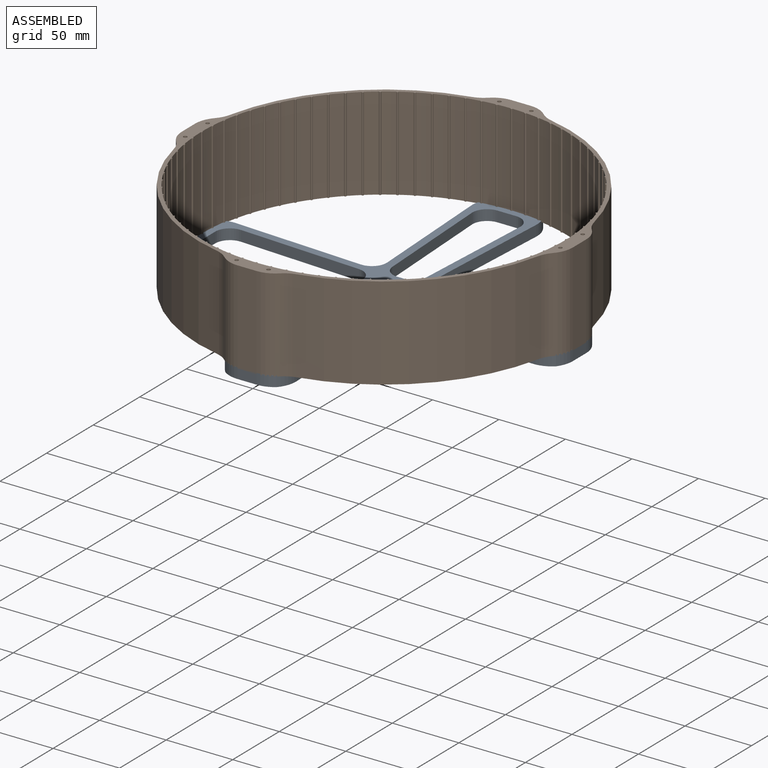
[diagram: assembled view]
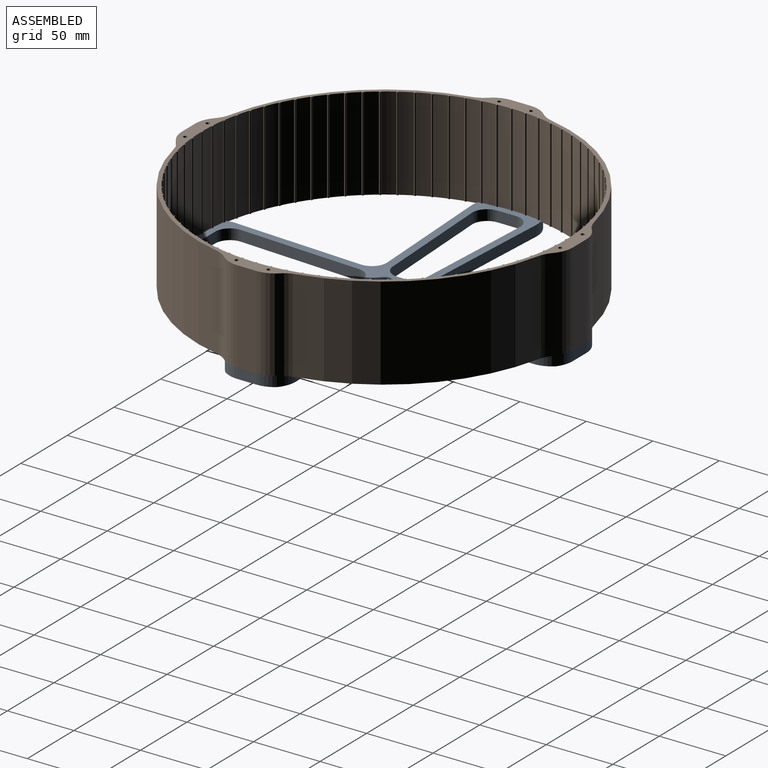
[diagram: assembled view, second angle]
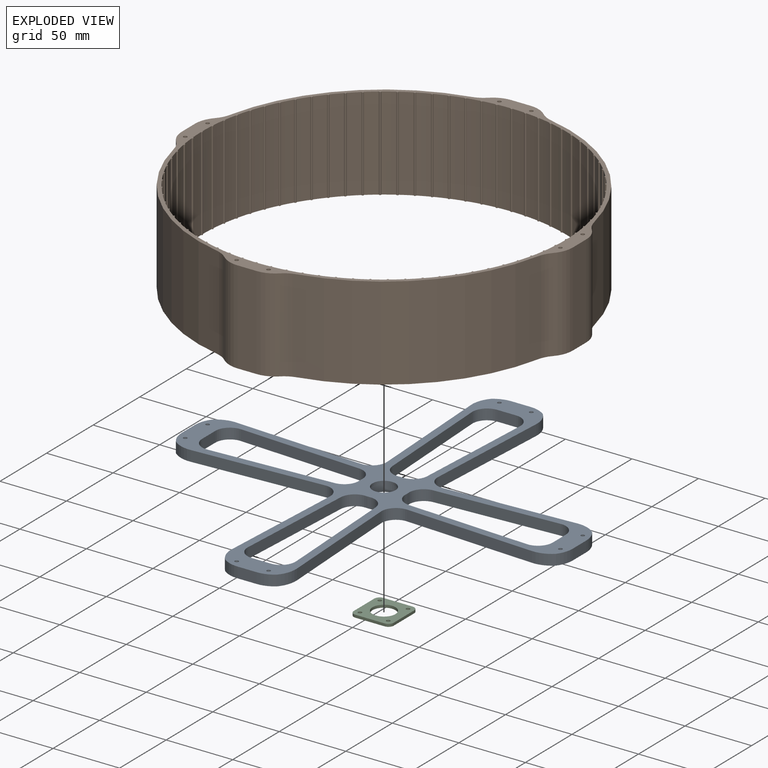
[diagram: exploded view]
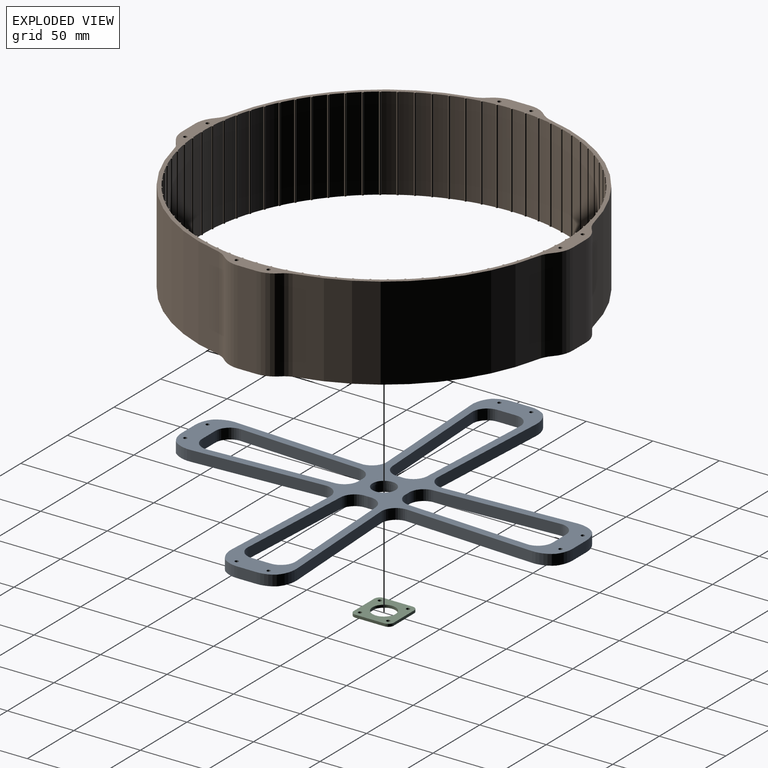
[diagram: exploded view, second angle]
ASSEMBLY  parts=3 mates=2
PART A: 93 faces, bbox 294x294x8 mm
  f0: cylinder r=9.65mm len=19.3mm, axis (0,0,1), area 363.8mm2, adj f37,f76
  f1: cylinder r=17.5mm len=8mm, axis (0,0,1), area 20.1mm2, adj f37,f38,f64,f69
  f2: plane 92.32x8mm, normal (-1,-0.05,0), area 739.7mm2, adj f37,f38,f64,f73
  f3: plane 14.11x8mm, normal (0,1,0), area 112.8mm2, adj f37,f38,f73,f74
  f4: plane 92.32x8mm, normal (0.05,1,0), area 739.7mm2, adj f37,f38,f65,f71
  f5: cylinder r=17.5mm len=8mm, axis (0,0,1), area 20.1mm2, adj f37,f38,f65,f66
  f6: plane 92.32x8mm, normal (0.05,-1,0), area 739.7mm2, adj f37,f38,f66,f70
  f7: cylinder r=17.5mm len=8mm, axis (0,0,1), area 20.1mm2, adj f37,f38,f62,f68
  f8: plane 92.32x8mm, normal (-0.05,1,0), area 739.7mm2, adj f37,f38,f60,f68
  f9: plane 14.11x8mm, normal (1,0,0), area 112.8mm2, adj f37,f38,f60,f61
  f10: cylinder r=17.5mm len=8mm, axis (0,0,1), area 20.1mm2, adj f37,f38,f63,f67
  f11: plane 92.32x8mm, normal (1,0.05,0), area 739.7mm2, adj f37,f38,f56,f63
  f12: plane 14.11x8mm, normal (0,-1,0), area 112.8mm2, adj f37,f38,f56,f57
  f13: plane 97.59x8mm, normal (-1,-0.05,0), area 781.9mm2, adj f37,f38,f40,f55
  f14: plane 97.59x8mm, normal (0.05,1,0), area 781.9mm2, adj f37,f38,f46,f55
  f15: plane 14.34x8mm, normal (-1,0,0), area 114.7mm2, adj f37,f38,f43,f45
  f16: plane 97.59x8mm, normal (0.05,-1,0), area 781.9mm2, adj f37,f38,f44,f59
  f17: plane 97.59x8mm, normal (-1,0.05,0), area 781.9mm2, adj f37,f38,f52,f59
  f18: plane 14.34x8mm, normal (0,-1,0), area 114.7mm2, adj f37,f38,f51,f53
  f19: plane 97.59x8mm, normal (1,0.05,0), area 781.9mm2, adj f37,f38,f54,f72
  f20: plane 97.59x8mm, normal (-0.05,-1,0), area 781.9mm2, adj f37,f38,f48,f72
  f21: plane 14.34x8mm, normal (1,0,0), area 114.7mm2, adj f37,f38,f47,f49
  f22: plane 97.59x8mm, normal (-0.05,1,0), area 781.9mm2, adj f37,f38,f50,f58
  f23: plane 97.59x8mm, normal (1,-0.05,0), area 781.9mm2, adj f37,f38,f42,f58
  f24: cylinder r=1.4mm len=5mm, axis (0,0,1), area 44mm2, adj f38,f86
  f25: cylinder r=1.4mm len=5mm, axis (0,0,1), area 44mm2, adj f38,f92
  f26: cylinder r=1.4mm len=5mm, axis (0,0,1), area 44mm2, adj f38,f91
  f27: cylinder r=1.4mm len=5mm, axis (0,0,1), area 44mm2, adj f38,f89
  f28: cylinder r=1.4mm len=5mm, axis (0,0,1), area 44mm2, adj f38,f90
  f29: plane 92.32x8mm, normal (1,-0.05,0), area 739.7mm2, adj f37,f38,f69,f74
  f30: plane 14.11x8mm, normal (-1,0,0), area 112.8mm2, adj f37,f38,f70,f71
  f31: plane 92.32x8mm, normal (-0.05,-1,0), area 739.7mm2, adj f37,f38,f61,f62
  f32: plane 92.32x8mm, normal (-1,0.05,0), area 739.7mm2, adj f37,f38,f57,f67
  f33: cylinder r=1.4mm len=5mm, axis (0,0,1), area 44mm2, adj f38,f88
  f34: cylinder r=1.4mm len=5mm, axis (0,0,1), area 44mm2, adj f38,f87
  f35: plane 14.34x8mm, normal (0,1,0), area 114.7mm2, adj f37,f38,f39,f41
  f36: cylinder r=1.4mm len=5mm, axis (0,0,1), area 44mm2, adj f38,f85
  f37: plane 294x294mm, normal (0,0,-1), area 8970.4mm2, adj f0,f1,f2,f3,f4,f5,f6,f7
  f38: plane 294x294mm, normal (0,0,1), area 9489.8mm2, adj f1,f2,f3,f4,f5,f6,f7,f8
  f39: cylinder r=20mm len=12.2mm, axis (0,0,1), area 105mm2, adj f35,f37,f38,f40
  f40: cylinder r=20mm len=14.48mm, axis (0,0,-1), area 126.1mm2, adj f13,f37,f38,f39
  f41: cylinder r=20mm len=12.2mm, axis (0,0,1), area 105mm2, adj f35,f37,f38,f42
  f42: cylinder r=20mm len=14.48mm, axis (0,0,1), area 126.1mm2, adj f23,f37,f38,f41
  f43: cylinder r=20mm len=12.2mm, axis (0,0,1), area 105mm2, adj f15,f37,f38,f44
  f44: cylinder r=20mm len=14.48mm, axis (0,0,-1), area 126.1mm2, adj f16,f37,f38,f43
  f45: cylinder r=20mm len=12.2mm, axis (0,0,1), area 105mm2, adj f15,f37,f38,f46
  f46: cylinder r=20mm len=14.48mm, axis (0,0,1), area 126.1mm2, adj f14,f37,f38,f45
  f47: cylinder r=20mm len=12.2mm, axis (0,0,1), area 105mm2, adj f21,f37,f38,f48
  f48: cylinder r=20mm len=14.48mm, axis (0,0,1), area 126.1mm2, adj f20,f37,f38,f47
  f49: cylinder r=20mm len=12.2mm, axis (0,0,1), area 105mm2, adj f21,f37,f38,f50
  f50: cylinder r=20mm len=14.48mm, axis (0,0,-1), area 126.1mm2, adj f22,f37,f38,f49
  f51: cylinder r=20mm len=12.2mm, axis (0,0,1), area 105mm2, adj f18,f37,f38,f52
  f52: cylinder r=20mm len=14.48mm, axis (0,0,1), area 126.1mm2, adj f17,f37,f38,f51
  f53: cylinder r=20mm len=12.2mm, axis (0,0,1), area 105mm2, adj f18,f37,f38,f54
  f54: cylinder r=20mm len=14.48mm, axis (0,0,-1), area 126.1mm2, adj f19,f37,f38,f53
  f55: cylinder r=11mm len=11.6mm, axis (0,0,1), area 147.8mm2, adj f13,f14,f37,f38
  f56: cylinder r=11mm len=11.6mm, axis (0,0,-1), area 143mm2, adj f11,f12,f37,f38
  f57: cylinder r=11mm len=11.6mm, axis (0,0,1), area 143mm2, adj f12,f32,f37,f38
  f58: cylinder r=11mm len=11.6mm, axis (0,0,1), area 147.8mm2, adj f22,f23,f37,f38
  f59: cylinder r=11mm len=11.6mm, axis (0,0,1), area 147.8mm2, adj f16,f17,f37,f38
  f60: cylinder r=11mm len=11.6mm, axis (0,0,-1), area 143mm2, adj f8,f9,f37,f38
  f61: cylinder r=11mm len=11.6mm, axis (0,0,1), area 143mm2, adj f9,f31,f37,f38
  f62: cylinder r=11mm len=11.77mm, axis (0,0,1), area 139.8mm2, adj f7,f31,f37,f38
  f63: cylinder r=11mm len=11.77mm, axis (0,0,1), area 139.8mm2, adj f10,f11,f37,f38
  f64: cylinder r=11mm len=11.77mm, axis (0,0,1), area 139.8mm2, adj f1,f2,f37,f38
  f65: cylinder r=11mm len=11.77mm, axis (0,0,1), area 139.8mm2, adj f4,f5,f37,f38
  f66: cylinder r=11mm len=11.77mm, axis (0,0,1), area 139.8mm2, adj f5,f6,f37,f38
  f67: cylinder r=11mm len=11.77mm, axis (0,0,1), area 139.8mm2, adj f10,f32,f37,f38
  f68: cylinder r=11mm len=11.77mm, axis (0,0,1), area 139.8mm2, adj f7,f8,f37,f38
  f69: cylinder r=11mm len=11.77mm, axis (0,0,1), area 139.8mm2, adj f1,f29,f37,f38
  f70: cylinder r=11mm len=11.6mm, axis (0,0,-1), area 143mm2, adj f6,f30,f37,f38
  f71: cylinder r=11mm len=11.6mm, axis (0,0,1), area 143mm2, adj f4,f30,f37,f38
  f72: cylinder r=11mm len=11.6mm, axis (0,0,1), area 147.8mm2, adj f19,f20,f37,f38
  f73: cylinder r=11mm len=11.6mm, axis (0,0,-1), area 143mm2, adj f2,f3,f37,f38
  f74: cylinder r=11mm len=11.6mm, axis (0,0,1), area 143mm2, adj f3,f29,f37,f38
  f75: cylinder r=8.65mm len=17.3mm, axis (0,0,1), area 108.7mm2, adj f38,f76
  f76: plane 19.3x19.3mm, normal (0,0,-1), area 57.5mm2, adj f0,f75
  f77: cylinder r=1.4mm len=7mm, axis (0,0,-1), area 61.6mm2, adj f37,f78
  f78: plane 2.8x2.8mm, normal (0,0,-1), area 6.2mm2, adj f77
  f79: cylinder r=1.4mm len=7mm, axis (0,0,-1), area 61.6mm2, adj f37,f80
  f80: plane 2.8x2.8mm, normal (0,0,-1), area 6.2mm2, adj f79
  f81: cylinder r=1.4mm len=7mm, axis (0,0,-1), area 61.6mm2, adj f37,f82
  f82: plane 2.8x2.8mm, normal (0,0,-1), area 6.2mm2, adj f81
  f83: cylinder r=1.4mm len=7mm, axis (0,0,-1), area 61.6mm2, adj f37,f84
  f84: plane 2.8x2.8mm, normal (0,0,-1), area 6.2mm2, adj f83
  f85: cone r=4.4mm half-angle=45deg, axis (0,0,-1), area 77.3mm2, adj f36,f37
  f86: cone r=4.4mm half-angle=45deg, axis (0,0,-1), area 77.3mm2, adj f24,f37
  f87: cone r=4.4mm half-angle=45deg, axis (0,0,-1), area 77.3mm2, adj f34,f37
  f88: cone r=4.4mm half-angle=45deg, axis (0,0,-1), area 77.3mm2, adj f33,f37
  f89: cone r=4.4mm half-angle=45deg, axis (0,0,-1), area 77.3mm2, adj f27,f37
  f90: cone r=4.4mm half-angle=45deg, axis (0,0,-1), area 77.3mm2, adj f28,f37
  f91: cone r=4.4mm half-angle=45deg, axis (0,0,-1), area 77.3mm2, adj f26,f37
  f92: cone r=4.4mm half-angle=45deg, axis (0,0,-1), area 77.3mm2, adj f25,f37
PART B: 202 faces, bbox 294x294x70 mm
  f0: cylinder r=140mm len=106.56mm, axis (0,0,-1), area 11139.4mm2, adj f164,f165,f191,f195
  f1: cylinder r=140mm len=106.56mm, axis (0,0,-1), area 11139.4mm2, adj f164,f165,f189,f190
  f2: cylinder r=140mm len=106.56mm, axis (0,0,-1), area 11139.4mm2, adj f164,f165,f188,f201
  f3: cylinder r=140mm len=106.56mm, axis (0,0,-1), area 11139.4mm2, adj f164,f165,f194,f200
  f4: cylinder r=137mm len=70mm, axis (0,0,-1), area 648.2mm2, adj f5,f163,f164,f165
  f5: cylinder r=0.75mm len=70mm, axis (0,0,-1), area 164.6mm2, adj f4,f6,f164,f165
  f6: cylinder r=137mm len=70mm, axis (0,0,-1), area 648.2mm2, adj f5,f7,f164,f165
  f7: cylinder r=0.75mm len=70mm, axis (0,0,-1), area 164.6mm2, adj f6,f8,f164,f165
  f8: cylinder r=137mm len=70mm, axis (0,0,-1), area 648.2mm2, adj f7,f9,f164,f165
  f9: cylinder r=0.75mm len=70mm, axis (0,0,-1), area 164.6mm2, adj f8,f10,f164,f165
  f10: cylinder r=137mm len=70mm, axis (0,0,-1), area 648.2mm2, adj f9,f11,f164,f165
  f11: cylinder r=0.75mm len=70mm, axis (0,0,-1), area 164.6mm2, adj f10,f12,f164,f165
  f12: cylinder r=137mm len=70mm, axis (0,0,-1), area 648.2mm2, adj f11,f13,f164,f165
  f13: cylinder r=0.75mm len=70mm, axis (0,0,-1), area 164.6mm2, adj f12,f14,f164,f165
  f14: cylinder r=137mm len=70mm, axis (0,0,-1), area 648.2mm2, adj f13,f15,f164,f165
  f15: cylinder r=0.75mm len=70mm, axis (0,0,-1), area 164.6mm2, adj f14,f16,f164,f165
  f16: cylinder r=137mm len=70mm, axis (0,0,-1), area 648.2mm2, adj f15,f17,f164,f165
  f17: cylinder r=0.75mm len=70mm, axis (0,0,-1), area 164.6mm2, adj f16,f18,f164,f165
  f18: cylinder r=137mm len=70mm, axis (0,0,-1), area 648.2mm2, adj f17,f19,f164,f165
  f19: cylinder r=0.75mm len=70mm, axis (0,0,-1), area 164.6mm2, adj f18,f20,f164,f165
  f20: cylinder r=137mm len=70mm, axis (0,0,-1), area 648.2mm2, adj f19,f21,f164,f165
  f21: cylinder r=0.75mm len=70mm, axis (0,0,-1), area 164.6mm2, adj f20,f22,f164,f165
  f22: cylinder r=137mm len=70mm, axis (0,0,-1), area 648.2mm2, adj f21,f23,f164,f165
  f23: cylinder r=0.75mm len=70mm, axis (0,0,-1), area 164.6mm2, adj f22,f24,f164,f165
  f24: cylinder r=137mm len=70mm, axis (0,0,-1), area 648.2mm2, adj f23,f25,f164,f165
  f25: cylinder r=0.75mm len=70mm, axis (0,0,-1), area 164.6mm2, adj f24,f26,f164,f165
  f26: cylinder r=137mm len=70mm, axis (0,0,-1), area 648.2mm2, adj f25,f27,f164,f165
  f27: cylinder r=0.75mm len=70mm, axis (0,0,-1), area 164.6mm2, adj f26,f28,f164,f165
  f28: cylinder r=137mm len=70mm, axis (0,0,-1), area 648.2mm2, adj f27,f29,f164,f165
  f29: cylinder r=0.75mm len=70mm, axis (0,0,-1), area 164.6mm2, adj f28,f30,f164,f165
  f30: cylinder r=137mm len=70mm, axis (0,0,-1), area 648.2mm2, adj f29,f31,f164,f165
  f31: cylinder r=0.75mm len=70mm, axis (0,0,-1), area 164.6mm2, adj f30,f32,f164,f165
  f32: cylinder r=137mm len=70mm, axis (0,0,-1), area 648.2mm2, adj f31,f33,f164,f165
  f33: cylinder r=0.75mm len=70mm, axis (0,0,-1), area 164.6mm2, adj f32,f34,f164,f165
  f34: cylinder r=137mm len=70mm, axis (0,0,-1), area 648.2mm2, adj f33,f35,f164,f165
  f35: cylinder r=0.75mm len=70mm, axis (0,0,-1), area 164.6mm2, adj f34,f36,f164,f165
  f36: cylinder r=137mm len=70mm, axis (0,0,-1), area 648.2mm2, adj f35,f37,f164,f165
  f37: cylinder r=0.75mm len=70mm, axis (0,0,-1), area 164.6mm2, adj f36,f38,f164,f165
  f38: cylinder r=137mm len=70mm, axis (0,0,-1), area 648.2mm2, adj f37,f39,f164,f165
  f39: cylinder r=0.75mm len=70mm, axis (0,0,-1), area 164.6mm2, adj f38,f40,f164,f165
  f40: cylinder r=137mm len=70mm, axis (0,0,-1), area 648.2mm2, adj f39,f41,f164,f165
  f41: cylinder r=0.75mm len=70mm, axis (0,0,-1), area 164.6mm2, adj f40,f42,f164,f165
  f42: cylinder r=137mm len=70mm, axis (0,0,-1), area 648.2mm2, adj f41,f43,f164,f165
  f43: cylinder r=0.75mm len=70mm, axis (0,0,-1), area 164.6mm2, adj f42,f44,f164,f165
  f44: cylinder r=137mm len=70mm, axis (0,0,-1), area 648.2mm2, adj f43,f45,f164,f165
  f45: cylinder r=0.75mm len=70mm, axis (0,0,-1), area 164.6mm2, adj f44,f46,f164,f165
  f46: cylinder r=137mm len=70mm, axis (0,0,-1), area 648.2mm2, adj f45,f47,f164,f165
  f47: cylinder r=0.75mm len=70mm, axis (0,0,-1), area 164.6mm2, adj f46,f48,f164,f165
  f48: cylinder r=137mm len=70mm, axis (0,0,-1), area 648.2mm2, adj f47,f49,f164,f165
  f49: cylinder r=0.75mm len=70mm, axis (0,0,-1), area 164.6mm2, adj f48,f50,f164,f165
  f50: cylinder r=137mm len=70mm, axis (0,0,-1), area 648.2mm2, adj f49,f51,f164,f165
  f51: cylinder r=0.75mm len=70mm, axis (0,0,-1), area 164.6mm2, adj f50,f52,f164,f165
  f52: cylinder r=137mm len=70mm, axis (0,0,-1), area 648.2mm2, adj f51,f53,f164,f165
  f53: cylinder r=0.75mm len=70mm, axis (0,0,-1), area 164.6mm2, adj f52,f54,f164,f165
  f54: cylinder r=137mm len=70mm, axis (0,0,-1), area 648.2mm2, adj f53,f55,f164,f165
  f55: cylinder r=0.75mm len=70mm, axis (0,0,-1), area 164.6mm2, adj f54,f56,f164,f165
  f56: cylinder r=137mm len=70mm, axis (0,0,-1), area 648.2mm2, adj f55,f57,f164,f165
  f57: cylinder r=0.75mm len=70mm, axis (0,0,-1), area 164.6mm2, adj f56,f58,f164,f165
  f58: cylinder r=137mm len=70mm, axis (0,0,-1), area 648.2mm2, adj f57,f59,f164,f165
  f59: cylinder r=0.75mm len=70mm, axis (0,0,-1), area 164.6mm2, adj f58,f60,f164,f165
  f60: cylinder r=137mm len=70mm, axis (0,0,-1), area 648.2mm2, adj f59,f61,f164,f165
  f61: cylinder r=0.75mm len=70mm, axis (0,0,-1), area 164.6mm2, adj f60,f62,f164,f165
  f62: cylinder r=137mm len=70mm, axis (0,0,-1), area 648.2mm2, adj f61,f63,f164,f165
  f63: cylinder r=0.75mm len=70mm, axis (0,0,-1), area 164.6mm2, adj f62,f64,f164,f165
  f64: cylinder r=137mm len=70mm, axis (0,0,-1), area 648.2mm2, adj f63,f65,f164,f165
  f65: cylinder r=0.75mm len=70mm, axis (0,0,-1), area 164.6mm2, adj f64,f66,f164,f165
  f66: cylinder r=137mm len=70mm, axis (0,0,-1), area 648.2mm2, adj f65,f67,f164,f165
  f67: cylinder r=0.75mm len=70mm, axis (0,0,-1), area 164.6mm2, adj f66,f68,f164,f165
  f68: cylinder r=137mm len=70mm, axis (0,0,-1), area 648.2mm2, adj f67,f69,f164,f165
  f69: cylinder r=0.75mm len=70mm, axis (0,0,-1), area 164.6mm2, adj f68,f70,f164,f165
  f70: cylinder r=137mm len=70mm, axis (0,0,-1), area 648.2mm2, adj f69,f71,f164,f165
  f71: cylinder r=0.75mm len=70mm, axis (0,0,-1), area 164.6mm2, adj f70,f72,f164,f165
  f72: cylinder r=137mm len=70mm, axis (0,0,-1), area 648.2mm2, adj f71,f73,f164,f165
  f73: cylinder r=0.75mm len=70mm, axis (0,0,-1), area 164.6mm2, adj f72,f74,f164,f165
  f74: cylinder r=137mm len=70mm, axis (0,0,-1), area 648.2mm2, adj f73,f75,f164,f165
  f75: cylinder r=0.75mm len=70mm, axis (0,0,-1), area 164.6mm2, adj f74,f76,f164,f165
  f76: cylinder r=137mm len=70mm, axis (0,0,-1), area 648.2mm2, adj f75,f77,f164,f165
  f77: cylinder r=0.75mm len=70mm, axis (0,0,-1), area 164.6mm2, adj f76,f78,f164,f165
  f78: cylinder r=137mm len=70mm, axis (0,0,-1), area 648.2mm2, adj f77,f79,f164,f165
  f79: cylinder r=0.75mm len=70mm, axis (0,0,-1), area 164.6mm2, adj f78,f80,f164,f165
  f80: cylinder r=137mm len=70mm, axis (0,0,-1), area 648.2mm2, adj f79,f81,f164,f165
  f81: cylinder r=0.75mm len=70mm, axis (0,0,-1), area 164.6mm2, adj f80,f82,f164,f165
  f82: cylinder r=137mm len=70mm, axis (0,0,-1), area 648.2mm2, adj f81,f83,f164,f165
  f83: cylinder r=0.75mm len=70mm, axis (0,0,-1), area 164.6mm2, adj f82,f84,f164,f165
  f84: cylinder r=137mm len=70mm, axis (0,0,-1), area 648.2mm2, adj f83,f85,f164,f165
  f85: cylinder r=0.75mm len=70mm, axis (0,0,-1), area 164.6mm2, adj f84,f86,f164,f165
  f86: cylinder r=137mm len=70mm, axis (0,0,-1), area 648.2mm2, adj f85,f87,f164,f165
  f87: cylinder r=0.75mm len=70mm, axis (0,0,-1), area 164.6mm2, adj f86,f88,f164,f165
  f88: cylinder r=137mm len=70mm, axis (0,0,-1), area 648.2mm2, adj f87,f89,f164,f165
  f89: cylinder r=0.75mm len=70mm, axis (0,0,-1), area 164.6mm2, adj f88,f90,f164,f165
  f90: cylinder r=137mm len=70mm, axis (0,0,-1), area 648.2mm2, adj f89,f91,f164,f165
  f91: cylinder r=0.75mm len=70mm, axis (0,0,-1), area 164.6mm2, adj f90,f92,f164,f165
  f92: cylinder r=137mm len=70mm, axis (0,0,-1), area 648.2mm2, adj f91,f93,f164,f165
  f93: cylinder r=0.75mm len=70mm, axis (0,0,-1), area 164.6mm2, adj f92,f94,f164,f165
  f94: cylinder r=137mm len=70mm, axis (0,0,-1), area 648.2mm2, adj f93,f95,f164,f165
  f95: cylinder r=0.75mm len=70mm, axis (0,0,-1), area 164.6mm2, adj f94,f96,f164,f165
  f96: cylinder r=137mm len=70mm, axis (0,0,-1), area 648.2mm2, adj f95,f97,f164,f165
  f97: cylinder r=0.75mm len=70mm, axis (0,0,-1), area 164.6mm2, adj f96,f98,f164,f165
  f98: cylinder r=137mm len=70mm, axis (0,0,-1), area 648.2mm2, adj f97,f99,f164,f165
  f99: cylinder r=0.75mm len=70mm, axis (0,0,-1), area 164.6mm2, adj f98,f100,f164,f165
  f100: cylinder r=137mm len=70mm, axis (0,0,-1), area 648.2mm2, adj f99,f101,f164,f165
  f101: cylinder r=0.75mm len=70mm, axis (0,0,-1), area 164.6mm2, adj f100,f102,f164,f165
  f102: cylinder r=137mm len=70mm, axis (0,0,-1), area 648.2mm2, adj f101,f103,f164,f165
  f103: cylinder r=0.75mm len=70mm, axis (0,0,-1), area 164.6mm2, adj f102,f104,f164,f165
  f104: cylinder r=137mm len=70mm, axis (0,0,-1), area 648.2mm2, adj f103,f105,f164,f165
  f105: cylinder r=0.75mm len=70mm, axis (0,0,-1), area 164.6mm2, adj f104,f106,f164,f165
  f106: cylinder r=137mm len=70mm, axis (0,0,-1), area 648.2mm2, adj f105,f107,f164,f165
  f107: cylinder r=0.75mm len=70mm, axis (0,0,-1), area 164.6mm2, adj f106,f108,f164,f165
  f108: cylinder r=137mm len=70mm, axis (0,0,-1), area 648.2mm2, adj f107,f109,f164,f165
  f109: cylinder r=0.75mm len=70mm, axis (0,0,-1), area 164.6mm2, adj f108,f110,f164,f165
  f110: cylinder r=137mm len=70mm, axis (0,0,-1), area 648.2mm2, adj f109,f111,f164,f165
  f111: cylinder r=0.75mm len=70mm, axis (0,0,-1), area 164.6mm2, adj f110,f112,f164,f165
  f112: cylinder r=137mm len=70mm, axis (0,0,-1), area 648.2mm2, adj f111,f113,f164,f165
  f113: cylinder r=0.75mm len=70mm, axis (0,0,-1), area 164.6mm2, adj f112,f114,f164,f165
  f114: cylinder r=137mm len=70mm, axis (0,0,-1), area 648.2mm2, adj f113,f115,f164,f165
  f115: cylinder r=0.75mm len=70mm, axis (0,0,-1), area 164.6mm2, adj f114,f116,f164,f165
  f116: cylinder r=137mm len=70mm, axis (0,0,-1), area 648.2mm2, adj f115,f117,f164,f165
  f117: cylinder r=0.75mm len=70mm, axis (0,0,-1), area 164.6mm2, adj f116,f118,f164,f165
  f118: cylinder r=137mm len=70mm, axis (0,0,-1), area 648.2mm2, adj f117,f119,f164,f165
  f119: cylinder r=0.75mm len=70mm, axis (0,0,-1), area 164.6mm2, adj f118,f120,f164,f165
  f120: cylinder r=137mm len=70mm, axis (0,0,-1), area 648.2mm2, adj f119,f121,f164,f165
  f121: cylinder r=0.75mm len=70mm, axis (0,0,-1), area 164.6mm2, adj f120,f122,f164,f165
  f122: cylinder r=137mm len=70mm, axis (0,0,-1), area 648.2mm2, adj f121,f123,f164,f165
  f123: cylinder r=0.75mm len=70mm, axis (0,0,-1), area 164.6mm2, adj f122,f124,f164,f165
  f124: cylinder r=137mm len=70mm, axis (0,0,-1), area 648.2mm2, adj f123,f125,f164,f165
  f125: cylinder r=0.75mm len=70mm, axis (0,0,-1), area 164.6mm2, adj f124,f126,f164,f165
  f126: cylinder r=137mm len=70mm, axis (0,0,-1), area 648.2mm2, adj f125,f127,f164,f165
  f127: cylinder r=0.75mm len=70mm, axis (0,0,-1), area 164.6mm2, adj f126,f128,f164,f165
  f128: cylinder r=137mm len=70mm, axis (0,0,-1), area 648.2mm2, adj f127,f129,f164,f165
  f129: cylinder r=0.75mm len=70mm, axis (0,0,-1), area 164.6mm2, adj f128,f130,f164,f165
  f130: cylinder r=137mm len=70mm, axis (0,0,-1), area 648.2mm2, adj f129,f131,f164,f165
  f131: cylinder r=0.75mm len=70mm, axis (0,0,-1), area 164.6mm2, adj f130,f132,f164,f165
  f132: cylinder r=137mm len=70mm, axis (0,0,-1), area 648.2mm2, adj f131,f133,f164,f165
  f133: cylinder r=0.75mm len=70mm, axis (0,0,-1), area 164.6mm2, adj f132,f134,f164,f165
  f134: cylinder r=137mm len=70mm, axis (0,0,-1), area 648.2mm2, adj f133,f135,f164,f165
  f135: cylinder r=0.75mm len=70mm, axis (0,0,-1), area 164.6mm2, adj f134,f136,f164,f165
  f136: cylinder r=137mm len=70mm, axis (0,0,-1), area 648.2mm2, adj f135,f137,f164,f165
  f137: cylinder r=0.75mm len=70mm, axis (0,0,-1), area 164.6mm2, adj f136,f138,f164,f165
  f138: cylinder r=137mm len=70mm, axis (0,0,-1), area 648.2mm2, adj f137,f139,f164,f165
  f139: cylinder r=0.75mm len=70mm, axis (0,0,-1), area 164.6mm2, adj f138,f140,f164,f165
  f140: cylinder r=137mm len=70mm, axis (0,0,-1), area 648.2mm2, adj f139,f141,f164,f165
  f141: cylinder r=0.75mm len=70mm, axis (0,0,-1), area 164.6mm2, adj f140,f142,f164,f165
  f142: cylinder r=137mm len=70mm, axis (0,0,-1), area 648.2mm2, adj f141,f143,f164,f165
  f143: cylinder r=0.75mm len=70mm, axis (0,0,-1), area 164.6mm2, adj f142,f144,f164,f165
  f144: cylinder r=137mm len=70mm, axis (0,0,-1), area 648.2mm2, adj f143,f145,f164,f165
  f145: cylinder r=0.75mm len=70mm, axis (0,0,-1), area 164.6mm2, adj f144,f146,f164,f165
  f146: cylinder r=137mm len=70mm, axis (0,0,-1), area 648.2mm2, adj f145,f147,f164,f165
  f147: cylinder r=0.75mm len=70mm, axis (0,0,-1), area 164.6mm2, adj f146,f148,f164,f165
  f148: cylinder r=137mm len=70mm, axis (0,0,-1), area 648.2mm2, adj f147,f149,f164,f165
  f149: cylinder r=0.75mm len=70mm, axis (0,0,-1), area 164.6mm2, adj f148,f150,f164,f165
  f150: cylinder r=137mm len=70mm, axis (0,0,-1), area 648.2mm2, adj f149,f151,f164,f165
  f151: cylinder r=0.75mm len=70mm, axis (0,0,-1), area 164.6mm2, adj f150,f152,f164,f165
  f152: cylinder r=137mm len=70mm, axis (0,0,-1), area 648.2mm2, adj f151,f153,f164,f165
  f153: cylinder r=0.75mm len=70mm, axis (0,0,-1), area 164.6mm2, adj f152,f154,f164,f165
  f154: cylinder r=137mm len=70mm, axis (0,0,-1), area 648.2mm2, adj f153,f155,f164,f165
  f155: cylinder r=0.75mm len=70mm, axis (0,0,-1), area 164.6mm2, adj f154,f156,f164,f165
  f156: cylinder r=137mm len=70mm, axis (0,0,-1), area 648.2mm2, adj f155,f157,f164,f165
  f157: cylinder r=0.75mm len=70mm, axis (0,0,-1), area 164.6mm2, adj f156,f158,f164,f165
  f158: cylinder r=137mm len=70mm, axis (0,0,-1), area 648.2mm2, adj f157,f159,f164,f165
  f159: cylinder r=0.75mm len=70mm, axis (0,0,-1), area 164.6mm2, adj f158,f160,f164,f165
  f160: cylinder r=137mm len=70mm, axis (0,0,-1), area 648.2mm2, adj f159,f161,f164,f165
  f161: cylinder r=0.75mm len=70mm, axis (0,0,-1), area 164.6mm2, adj f160,f162,f164,f165
  f162: cylinder r=137mm len=70mm, axis (0,0,-1), area 648.2mm2, adj f161,f163,f164,f165
  f163: cylinder r=0.75mm len=70mm, axis (0,0,-1), area 164.6mm2, adj f4,f162,f164,f165
  f164: plane 294x294mm, normal (0,0,1), area 3774.6mm2, adj f0,f1,f2,f3,f4,f5,f6,f7
  f165: plane 294x294mm, normal (0,0,-1), area 3774.6mm2, adj f0,f1,f2,f3,f4,f5,f6,f7
  f166: plane 70x0.13mm, normal (-0.68,0.73,0), area 12.2mm2, adj f164,f165,f198,f201
  f167: plane 70x0.13mm, normal (0.68,0.73,0), area 12.2mm2, adj f164,f165,f199,f200
  f168: cylinder r=1.4mm len=70mm, axis (0,0,-1), area 615.8mm2, adj f164,f165
  f169: plane 70x14.34mm, normal (0,1,0), area 1003.6mm2, adj f164,f165,f198,f199
  f170: cylinder r=1.4mm len=70mm, axis (0,0,-1), area 615.8mm2, adj f164,f165
  f171: plane 70x0.13mm, normal (-0.73,-0.68,0), area 12.2mm2, adj f164,f165,f186,f189
  f172: plane 70x0.13mm, normal (-0.73,0.68,0), area 12.2mm2, adj f164,f165,f187,f188
  f173: cylinder r=1.4mm len=70mm, axis (0,0,-1), area 615.8mm2, adj f164,f165
  f174: plane 70x14.34mm, normal (-1,0,0), area 1003.6mm2, adj f164,f165,f186,f187
  f175: cylinder r=1.4mm len=70mm, axis (0,0,-1), area 615.8mm2, adj f164,f165
  f176: plane 70x0.13mm, normal (-0.68,-0.73,0), area 12.2mm2, adj f164,f165,f190,f193
  f177: plane 70x14.34mm, normal (0,-1,0), area 1003.6mm2, adj f164,f165,f192,f193
  f178: plane 70x0.13mm, normal (0.68,-0.73,0), area 12.2mm2, adj f164,f165,f191,f192
  f179: cylinder r=1.4mm len=70mm, axis (0,0,-1), area 615.8mm2, adj f164,f165
  f180: cylinder r=1.4mm len=70mm, axis (0,0,-1), area 615.8mm2, adj f164,f165
  f181: plane 70x0.13mm, normal (0.73,0.68,0), area 12.2mm2, adj f164,f165,f194,f197
  f182: plane 70x0.13mm, normal (0.73,-0.68,0), area 12.2mm2, adj f164,f165,f195,f196
  f183: cylinder r=1.4mm len=70mm, axis (0,0,-1), area 615.8mm2, adj f164,f165
  f184: plane 70x14.34mm, normal (1,0,0), area 1003.6mm2, adj f164,f165,f196,f197
  f185: cylinder r=1.4mm len=70mm, axis (0,0,-1), area 615.8mm2, adj f164,f165
  f186: cylinder r=20mm len=70mm, axis (0,0,-1), area 1045.1mm2, adj f164,f165,f171,f174
  f187: cylinder r=20mm len=70mm, axis (0,0,-1), area 1045.1mm2, adj f164,f165,f172,f174
  f188: cylinder r=20mm len=70mm, axis (0,0,-1), area 741.2mm2, adj f2,f164,f165,f172
  f189: cylinder r=20mm len=70mm, axis (0,0,-1), area 741.2mm2, adj f1,f164,f165,f171
  f190: cylinder r=20mm len=70mm, axis (0,0,-1), area 741.2mm2, adj f1,f164,f165,f176
  f191: cylinder r=20mm len=70mm, axis (0,0,-1), area 741.2mm2, adj f0,f164,f165,f178
  f192: cylinder r=20mm len=70mm, axis (0,0,-1), area 1045.1mm2, adj f164,f165,f177,f178
  f193: cylinder r=20mm len=70mm, axis (0,0,-1), area 1045.1mm2, adj f164,f165,f176,f177
  f194: cylinder r=20mm len=70mm, axis (0,0,-1), area 741.2mm2, adj f3,f164,f165,f181
  f195: cylinder r=20mm len=70mm, axis (0,0,-1), area 741.2mm2, adj f0,f164,f165,f182
  f196: cylinder r=20mm len=70mm, axis (0,0,-1), area 1045.1mm2, adj f164,f165,f182,f184
  f197: cylinder r=20mm len=70mm, axis (0,0,-1), area 1045.1mm2, adj f164,f165,f181,f184
  f198: cylinder r=20mm len=70mm, axis (0,0,-1), area 1045.1mm2, adj f164,f165,f166,f169
  f199: cylinder r=20mm len=70mm, axis (0,0,-1), area 1045.1mm2, adj f164,f165,f167,f169
  f200: cylinder r=20mm len=70mm, axis (0,0,-1), area 741.2mm2, adj f3,f164,f165,f167
  f201: cylinder r=20mm len=70mm, axis (0,0,-1), area 741.2mm2, adj f2,f164,f165,f166
PART C: 15 faces, bbox 30x30x2 mm
  f0: plane 22x2mm, normal (0,-1,0), area 44mm2, adj f9,f10,f11,f14
  f1: plane 22x2mm, normal (-1,0,0), area 44mm2, adj f9,f10,f11,f12
  f2: plane 22x2mm, normal (0,1,0), area 44mm2, adj f9,f10,f12,f13
  f3: plane 22x2mm, normal (1,0,0), area 44mm2, adj f9,f10,f13,f14
  f4: cylinder r=1.4mm len=2.8mm, axis (0,0,1), area 17.6mm2, adj f9,f10
  f5: cylinder r=1.4mm len=2.8mm, axis (0,0,1), area 17.6mm2, adj f9,f10
  f6: cylinder r=1.4mm len=2.8mm, axis (0,0,1), area 17.6mm2, adj f9,f10
  f7: cylinder r=1.4mm len=2.8mm, axis (0,0,1), area 17.6mm2, adj f9,f10
  f8: cylinder r=8.65mm len=17.3mm, axis (0,0,1), area 108.7mm2, adj f9,f10
  f9: plane 30x30mm, normal (0,0,-1), area 626.6mm2, adj f0,f1,f2,f3,f4,f5,f6,f7
  f10: plane 30x30mm, normal (0,0,1), area 626.6mm2, adj f0,f1,f2,f3,f4,f5,f6,f7
  f11: cylinder r=4mm len=4mm, axis (0,0,-1), area 12.6mm2, adj f0,f1,f9,f10
  f12: cylinder r=4mm len=4mm, axis (0,0,1), area 12.6mm2, adj f1,f2,f9,f10
  f13: cylinder r=4mm len=4mm, axis (0,0,-1), area 12.6mm2, adj f2,f3,f9,f10
  f14: cylinder r=4mm len=4mm, axis (0,0,1), area 12.6mm2, adj f0,f3,f9,f10
PLACE A t=(12.11,16.56,0.79)mm
PLACE B t=(12.11,16.56,0)mm
PLACE C t=(12.11,16.56,0.79)mm
MATE parallel A.f25 <-> B.f179  axis (0,0,1) through (0.11,-124.44,0.79)mm
MATE fastened C.f4 <-> A.f77  axis (0,0,1) through (1.51,5.95,-7.21)mm
